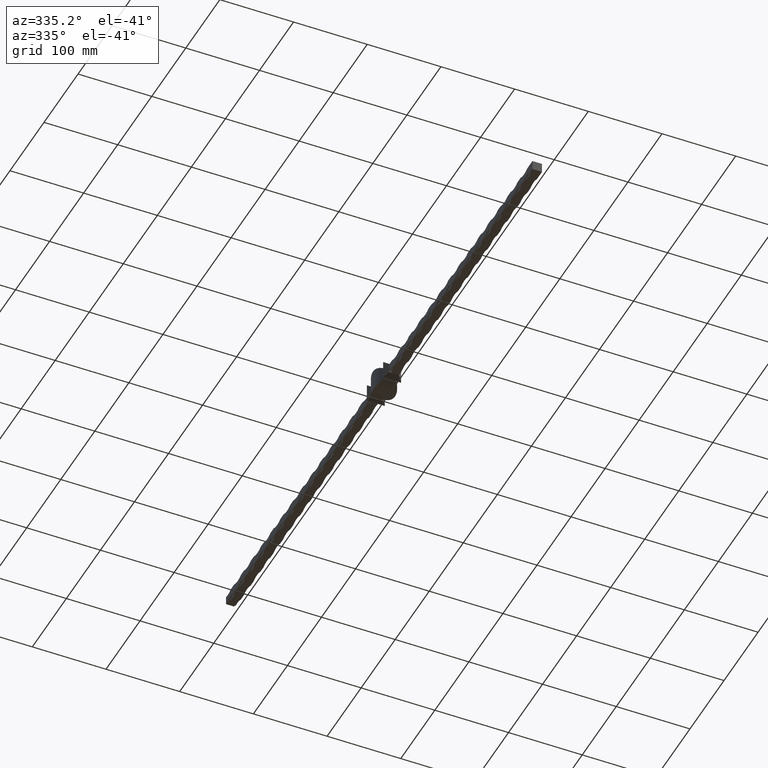
[diagram: clean part render]
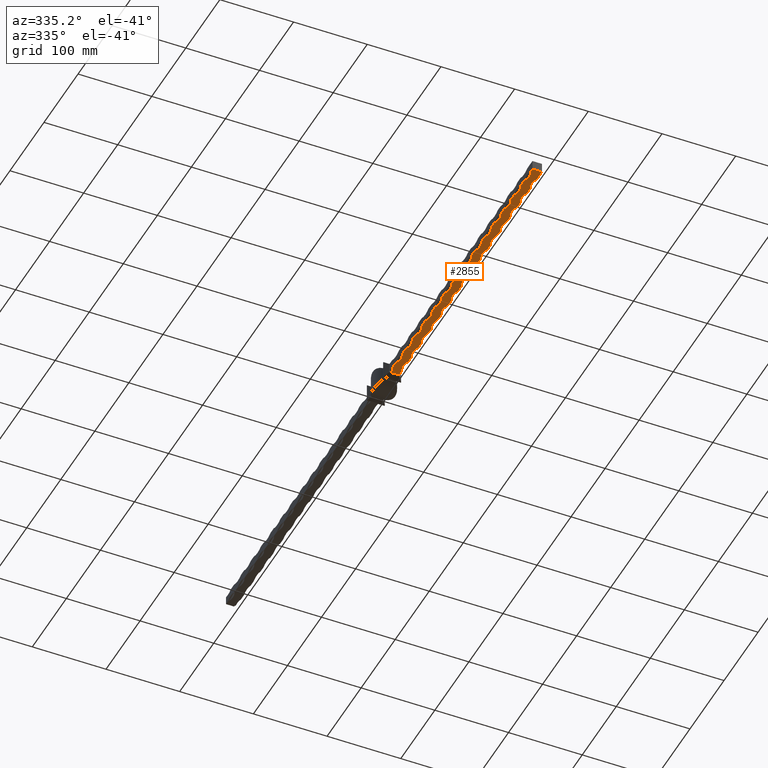
[diagram: same view with one face highlighted and labeled with its STEP entity id]
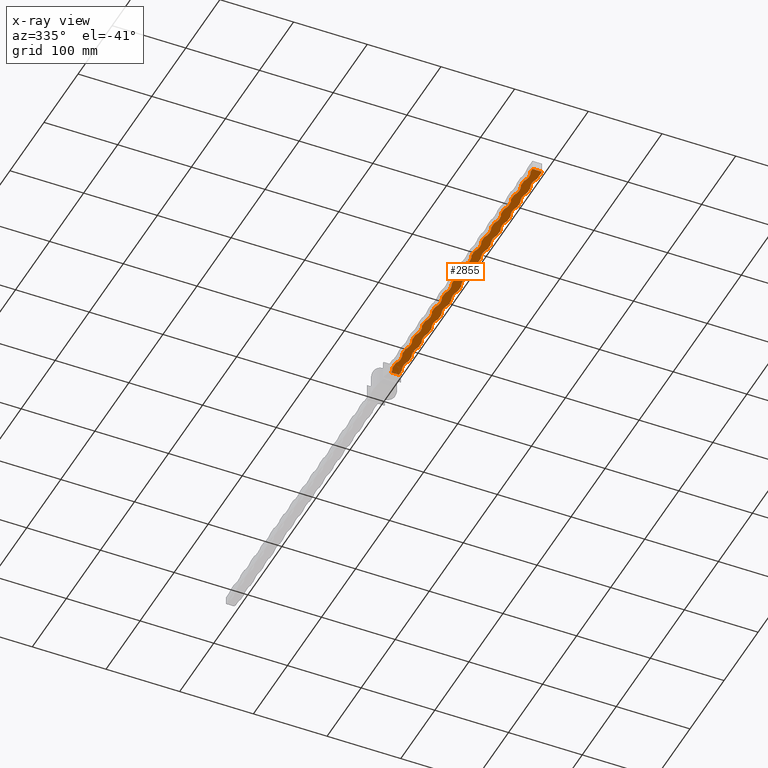
[diagram: x-ray of the same camera — body ghosted, the highlighted face saturated]
A machine part, auxiliary view. The second image highlights one B-rep face of the part: STEP entity #2855.
The next image is the same camera in x-ray: the body ghosted, the highlighted face saturated — about 0% of this face is hidden behind the body in this view.
In plain terms, the highlighted planar face has unit normal (0, 0, 1).
Its self-contained STEP definition (entity closure, byte-faithful):
#15 = VECTOR ( 'NONE', #12182, 1000.000000000000000 ) ;
#58 = VECTOR ( 'NONE', #1897, 1000.000000000000000 ) ;
#94 = CARTESIAN_POINT ( 'NONE',  ( -6.500000000000000888, 450.0000000000000000, -6.499999999999999112 ) ) ;
#138 = CIRCLE ( 'NONE', #9625, 21.25000000000000000 ) ;
#164 = ORIENTED_EDGE ( 'NONE', *, *, #14419, .F. ) ;
#247 = CARTESIAN_POINT ( 'NONE',  ( -6.500000000000002665, -77.00000000000001421, -6.499999999999999112 ) ) ;
#364 = EDGE_CURVE ( 'NONE', #13656, #7207, #5397, .T. ) ;
#420 = ORIENTED_EDGE ( 'NONE', *, *, #15467, .F. ) ;
#426 = CIRCLE ( 'NONE', #5309, 21.24999999999998579 ) ;
#428 = VECTOR ( 'NONE', #9554, 1000.000000000000000 ) ;
#448 = DIRECTION ( 'NONE',  ( -0.000000000000000000, -1.000000000000000000, -0.000000000000000000 ) ) ;
#489 = VERTEX_POINT ( 'NONE', #2640 ) ;
#506 = VERTEX_POINT ( 'NONE', #10933 ) ;
#577 = EDGE_CURVE ( 'NONE', #3587, #14415, #8593, .T. ) ;
#616 = ORIENTED_EDGE ( 'NONE', *, *, #10676, .F. ) ;
#638 = DIRECTION ( 'NONE',  ( -0.000000000000000000, -1.000000000000000000, -0.000000000000000000 ) ) ;
#652 = CARTESIAN_POINT ( 'NONE',  ( 6.499999999999997335, 450.0000000000000000, -6.499999999999999112 ) ) ;
#665 = CARTESIAN_POINT ( 'NONE',  ( 25.24999999999996447, -106.0000000000000426, -6.500000000000014211 ) ) ;
#680 = ORIENTED_EDGE ( 'NONE', *, *, #14022, .T. ) ;
#720 = DIRECTION ( 'NONE',  ( -0.000000000000000000, -1.000000000000000000, -0.000000000000000000 ) ) ;
#721 = AXIS2_PLACEMENT_3D ( 'NONE', #14729, #3687, #8516 ) ;
#723 = CARTESIAN_POINT ( 'NONE',  ( -25.25000000000000355, -145.0000000000000284, -6.499999999999968914 ) ) ;
#737 = CARTESIAN_POINT ( 'NONE',  ( -25.25000000000000355, -232.0000000000000000, -6.499999999999968914 ) ) ;
#760 = LINE ( 'NONE', #14836, #3222 ) ;
#814 = EDGE_CURVE ( 'NONE', #13211, #15542, #426, .T. ) ;
#843 = ORIENTED_EDGE ( 'NONE', *, *, #11688, .T. ) ;
#882 = VECTOR ( 'NONE', #7130, 1000.000000000000000 ) ;
#922 = VECTOR ( 'NONE', #6363, 1000.000000000000000 ) ;
#1012 = CARTESIAN_POINT ( 'NONE',  ( -6.500000000000002665, -425.0000000000000000, -6.499999999999999112 ) ) ;
#1059 = VERTEX_POINT ( 'NONE', #5813 ) ;
#1137 = CARTESIAN_POINT ( 'NONE',  ( -25.25000000000000355, -261.0000000000000000, -6.499999999999968914 ) ) ;
#1189 = VERTEX_POINT ( 'NONE', #3457 ) ;
#1196 = DIRECTION ( 'NONE',  ( 1.000000000000000000, 0.000000000000000000, 0.000000000000000000 ) ) ;
#1206 = DIRECTION ( 'NONE',  ( 1.000000000000000000, 0.000000000000000000, -0.000000000000000000 ) ) ;
#1208 = VERTEX_POINT ( 'NONE', #6073 ) ;
#1273 = CARTESIAN_POINT ( 'NONE',  ( -6.500000000000000888, 450.0000000000000000, -6.499999999999999112 ) ) ;
#1312 = LINE ( 'NONE', #8894, #922 ) ;
#1358 = CARTESIAN_POINT ( 'NONE',  ( 6.499999999999999112, -348.0000000000000000, -6.500000000000014211 ) ) ;
#1461 = VERTEX_POINT ( 'NONE', #1012 ) ;
#1464 = EDGE_CURVE ( 'NONE', #13270, #9117, #5375, .T. ) ;
#1473 = CARTESIAN_POINT ( 'NONE',  ( -6.500000000000002665, -280.0000000000000000, -6.499999999999999112 ) ) ;
#1476 = LINE ( 'NONE', #8076, #14385 ) ;
#1493 = EDGE_CURVE ( 'NONE', #8316, #3096, #7248, .T. ) ;
#1505 = VECTOR ( 'NONE', #10665, 1000.000000000000000 ) ;
#1561 = CIRCLE ( 'NONE', #6139, 21.24999999999998224 ) ;
#1562 = VERTEX_POINT ( 'NONE', #15690 ) ;
#1581 = ORIENTED_EDGE ( 'NONE', *, *, #13072, .F. ) ;
#1598 = ORIENTED_EDGE ( 'NONE', *, *, #15111, .T. ) ;
#1643 = DIRECTION ( 'NONE',  ( 1.000000000000000000, 0.000000000000000000, -0.000000000000000000 ) ) ;
#1645 = DIRECTION ( 'NONE',  ( 1.000000000000000000, 0.000000000000000000, 0.000000000000000000 ) ) ;
#1650 = VECTOR ( 'NONE', #1206, 1000.000000000000000 ) ;
#1662 = DIRECTION ( 'NONE',  ( -0.000000000000000000, -0.000000000000000000, -1.000000000000000000 ) ) ;
#1670 = EDGE_CURVE ( 'NONE', #1208, #13361, #3816, .T. ) ;
#1671 = DIRECTION ( 'NONE',  ( 0.000000000000000000, 0.000000000000000000, 1.000000000000000000 ) ) ;
#1712 = CARTESIAN_POINT ( 'NONE',  ( -25.25000000000000355, -116.0000000000000000, -6.499999999999968914 ) ) ;
#1757 = ORIENTED_EDGE ( 'NONE', *, *, #4280, .T. ) ;
#1762 = VERTEX_POINT ( 'NONE', #1879 ) ;
#1779 = EDGE_CURVE ( 'NONE', #3202, #11951, #12765, .T. ) ;
#1865 = CARTESIAN_POINT ( 'NONE',  ( 25.24999999999996803, -77.00000000000004263, -6.500000000000014211 ) ) ;
#1873 = CARTESIAN_POINT ( 'NONE',  ( -6.500000000000002665, -396.0000000000000000, -6.499999999999999112 ) ) ;
#1874 = AXIS2_PLACEMENT_3D ( 'NONE', #723, #6797, #10350 ) ;
#1879 = CARTESIAN_POINT ( 'NONE',  ( -6.500000000000002665, -39.00000000000004974, -6.499999999999999112 ) ) ;
#1897 = DIRECTION ( 'NONE',  ( -0.000000000000000000, -1.000000000000000000, -0.000000000000000000 ) ) ;
#1899 = DIRECTION ( 'NONE',  ( 1.000000000000000000, 1.959217102279689729E-15, 0.000000000000000000 ) ) ;
#1996 = ORIENTED_EDGE ( 'NONE', *, *, #14130, .F. ) ;
#2023 = VERTEX_POINT ( 'NONE', #4919 ) ;
#2072 = CARTESIAN_POINT ( 'NONE',  ( 6.499999999999997335, 450.0000000000000000, -6.499999999999999112 ) ) ;
#2199 = ORIENTED_EDGE ( 'NONE', *, *, #4563, .F. ) ;
#2241 = DIRECTION ( 'NONE',  ( 1.000000000000000000, 0.000000000000000000, 0.000000000000000000 ) ) ;
#2262 = EDGE_CURVE ( 'NONE', #4775, #4347, #8367, .T. ) ;
#2291 = EDGE_CURVE ( 'NONE', #1762, #9842, #6666, .T. ) ;
#2300 = CARTESIAN_POINT ( 'NONE',  ( 6.499999999999999112, -202.9999999999999716, -6.500000000000014211 ) ) ;
#2318 = CARTESIAN_POINT ( 'NONE',  ( -6.500000000000000888, 450.0000000000000000, -6.499999999999999112 ) ) ;
#2319 = ORIENTED_EDGE ( 'NONE', *, *, #4096, .T. ) ;
#2326 = CIRCLE ( 'NONE', #721, 21.24999999999998934 ) ;
#2343 = ORIENTED_EDGE ( 'NONE', *, *, #577, .F. ) ;
#2407 = CARTESIAN_POINT ( 'NONE',  ( -6.500000000000000888, 450.0000000000000000, -6.499999999999999112 ) ) ;
#2439 = LINE ( 'NONE', #8017, #1505 ) ;
#2472 = CARTESIAN_POINT ( 'NONE',  ( 25.24999999999997513, -48.00000000000002842, -6.500000000000014211 ) ) ;
#2495 = EDGE_CURVE ( 'NONE', #8510, #3701, #760, .T. ) ;
#2517 = DIRECTION ( 'NONE',  ( -0.000000000000000000, -0.000000000000000000, -1.000000000000000000 ) ) ;
#2537 = AXIS2_PLACEMENT_3D ( 'NONE', #3977, #10214, #2930 ) ;
#2600 = VERTEX_POINT ( 'NONE', #11673 ) ;
#2608 = VECTOR ( 'NONE', #10574, 1000.000000000000000 ) ;
#2625 = CARTESIAN_POINT ( 'NONE',  ( -6.500000000000000888, -29.99999999999997158, -6.499999999999999112 ) ) ;
#2640 = CARTESIAN_POINT ( 'NONE',  ( -6.500000000000002665, -338.0000000000000000, -6.499999999999999112 ) ) ;
#2646 = AXIS2_PLACEMENT_3D ( 'NONE', #8769, #1662, #6438 ) ;
#2648 = VERTEX_POINT ( 'NONE', #14937 ) ;
#2671 = CARTESIAN_POINT ( 'NONE',  ( 6.499999999999997335, 450.0000000000000000, -6.499999999999999112 ) ) ;
#2673 = EDGE_CURVE ( 'NONE', #3806, #1189, #6856, .T. ) ;
#2723 = EDGE_CURVE ( 'NONE', #3202, #3683, #10851, .T. ) ;
#2735 = CARTESIAN_POINT ( 'NONE',  ( 6.499999999999997335, 450.0000000000000000, -6.499999999999999112 ) ) ;
#2758 = DIRECTION ( 'NONE',  ( 1.000000000000000000, 0.000000000000000000, 0.000000000000000000 ) ) ;
#2799 = DIRECTION ( 'NONE',  ( -0.000000000000000000, -1.000000000000000000, -0.000000000000000000 ) ) ;
#2804 = CARTESIAN_POINT ( 'NONE',  ( 6.499999999999943157, -270.0000000000000000, -6.500000000000000888 ) ) ;
#2848 = CARTESIAN_POINT ( 'NONE',  ( -6.500000000000002665, -97.00000000000005684, -6.499999999999999112 ) ) ;
#2855 = ADVANCED_FACE ( 'NONE', ( #6371 ), #3956, .F. ) ;
#2890 = AXIS2_PLACEMENT_3D ( 'NONE', #665, #9167, #1899 ) ;
#2930 = DIRECTION ( 'NONE',  ( 1.000000000000000000, 0.000000000000000000, 0.000000000000000000 ) ) ;
#2964 = DIRECTION ( 'NONE',  ( -0.000000000000000000, -1.000000000000000000, -0.000000000000000000 ) ) ;
#3012 = ORIENTED_EDGE ( 'NONE', *, *, #7137, .T. ) ;
#3021 = DIRECTION ( 'NONE',  ( 1.000000000000000000, 0.000000000000000000, 0.000000000000000000 ) ) ;
#3059 = CIRCLE ( 'NONE', #4624, 21.24999999999998934 ) ;
#3062 = EDGE_CURVE ( 'NONE', #1762, #1059, #5058, .T. ) ;
#3096 = VERTEX_POINT ( 'NONE', #2804 ) ;
#3155 = DIRECTION ( 'NONE',  ( -0.000000000000000000, -0.000000000000000000, -1.000000000000000000 ) ) ;
#3167 = ORIENTED_EDGE ( 'NONE', *, *, #1493, .T. ) ;
#3171 = CARTESIAN_POINT ( 'NONE',  ( 6.499999999999982236, -67.00000000000000000, -6.500000000000000888 ) ) ;
#3183 = LINE ( 'NONE', #5204, #5861 ) ;
#3196 = DIRECTION ( 'NONE',  ( 1.000000000000000000, 0.000000000000000000, 0.000000000000000000 ) ) ;
#3202 = VERTEX_POINT ( 'NONE', #12633 ) ;
#3222 = VECTOR ( 'NONE', #3955, 1000.000000000000000 ) ;
#3282 = CARTESIAN_POINT ( 'NONE',  ( -25.25000000000000355, -174.0000000000000284, -6.499999999999968914 ) ) ;
#3381 = ORIENTED_EDGE ( 'NONE', *, *, #7655, .T. ) ;
#3397 = AXIS2_PLACEMENT_3D ( 'NONE', #1712, #13853, #3021 ) ;
#3455 = EDGE_CURVE ( 'NONE', #7614, #7993, #6547, .T. ) ;
#3457 = CARTESIAN_POINT ( 'NONE',  ( -6.500000000000002665, -106.0000000000000142, -6.499999999999999112 ) ) ;
#3587 = VERTEX_POINT ( 'NONE', #8230 ) ;
#3600 = CARTESIAN_POINT ( 'NONE',  ( 6.499999999999997335, 450.0000000000000000, -6.499999999999999112 ) ) ;
#3614 = CARTESIAN_POINT ( 'NONE',  ( 25.24999999999995026, -164.0000000000000284, -6.500000000000014211 ) ) ;
#3625 = LINE ( 'NONE', #7441, #15 ) ;
#3658 = LINE ( 'NONE', #11695, #428 ) ;
#3678 = ORIENTED_EDGE ( 'NONE', *, *, #6206, .F. ) ;
#3683 = VERTEX_POINT ( 'NONE', #8430 ) ;
#3687 = DIRECTION ( 'NONE',  ( -0.000000000000000000, -0.000000000000000000, -1.000000000000000000 ) ) ;
#3701 = VERTEX_POINT ( 'NONE', #6112 ) ;
#3725 = VERTEX_POINT ( 'NONE', #247 ) ;
#3737 = VERTEX_POINT ( 'NONE', #12461 ) ;
#3761 = CARTESIAN_POINT ( 'NONE',  ( 6.499999999999920952, -386.0000000000000000, -6.500000000000000888 ) ) ;
#3775 = AXIS2_PLACEMENT_3D ( 'NONE', #12881, #11562, #3196 ) ;
#3780 = CIRCLE ( 'NONE', #9747, 21.25000000000000000 ) ;
#3806 = VERTEX_POINT ( 'NONE', #2848 ) ;
#3816 = LINE ( 'NONE', #10883, #7613 ) ;
#3932 = VECTOR ( 'NONE', #5308, 1000.000000000000000 ) ;
#3938 = ORIENTED_EDGE ( 'NONE', *, *, #13415, .T. ) ;
#3955 = DIRECTION ( 'NONE',  ( -0.000000000000000000, -1.000000000000000000, -0.000000000000000000 ) ) ;
#3956 = PLANE ( 'NONE',  #14643 ) ;
#3977 = CARTESIAN_POINT ( 'NONE',  ( -25.25000000000000355, -406.0000000000000000, -6.499999999999968914 ) ) ;
#4030 = ORIENTED_EDGE ( 'NONE', *, *, #6635, .T. ) ;
#4096 = EDGE_CURVE ( 'NONE', #7218, #14415, #7272, .T. ) ;
#4125 = ORIENTED_EDGE ( 'NONE', *, *, #2262, .F. ) ;
#4164 = VECTOR ( 'NONE', #11586, 1000.000000000000000 ) ;
#4180 = EDGE_CURVE ( 'NONE', #13016, #3725, #12023, .T. ) ;
#4188 = VECTOR ( 'NONE', #6148, 1000.000000000000000 ) ;
#4240 = VERTEX_POINT ( 'NONE', #1358 ) ;
#4250 = CIRCLE ( 'NONE', #2537, 21.25000000000000000 ) ;
#4251 = VERTEX_POINT ( 'NONE', #12336 ) ;
#4280 = EDGE_CURVE ( 'NONE', #4301, #489, #9556, .T. ) ;
#4301 = VERTEX_POINT ( 'NONE', #11130 ) ;
#4308 = CARTESIAN_POINT ( 'NONE',  ( -6.500000000000002665, -48.00000000000000000, -6.499999999999999112 ) ) ;
#4333 = DIRECTION ( 'NONE',  ( 1.000000000000000000, -1.306144734853126026E-15, 0.000000000000000000 ) ) ;
#4347 = VERTEX_POINT ( 'NONE', #11017 ) ;
#4363 = CARTESIAN_POINT ( 'NONE',  ( -25.25000000000000355, -58.00000000000000000, -6.499999999999968914 ) ) ;
#4382 = AXIS2_PLACEMENT_3D ( 'NONE', #6808, #6861, #14170 ) ;
#4428 = VERTEX_POINT ( 'NONE', #11343 ) ;
#4442 = CARTESIAN_POINT ( 'NONE',  ( -6.500000000000002665, -126.0000000000000568, -6.499999999999999112 ) ) ;
#4480 = DIRECTION ( 'NONE',  ( 0.000000000000000000, 0.000000000000000000, 1.000000000000000000 ) ) ;
#4497 = DIRECTION ( 'NONE',  ( -0.000000000000000000, -1.000000000000000000, -0.000000000000000000 ) ) ;
#4529 = CARTESIAN_POINT ( 'NONE',  ( -6.500000000000000888, 450.0000000000000000, -6.499999999999999112 ) ) ;
#4563 = EDGE_CURVE ( 'NONE', #4240, #11951, #7071, .T. ) ;
#4624 = AXIS2_PLACEMENT_3D ( 'NONE', #8427, #7303, #14522 ) ;
#4650 = VECTOR ( 'NONE', #13160, 1000.000000000000000 ) ;
#4663 = CARTESIAN_POINT ( 'NONE',  ( -6.500000000000000888, -450.0000000000000000, -6.499999999999999112 ) ) ;
#4775 = VERTEX_POINT ( 'NONE', #2300 ) ;
#4798 = CARTESIAN_POINT ( 'NONE',  ( 6.499999999999995559, -290.0000000000000000, -6.500000000000014211 ) ) ;
#4806 = EDGE_LOOP ( 'NONE', ( #12885, #1598, #10170, #9875, #9357, #13392, #8174, #1581, #12849, #14613, #6648, #7311, #7545, #4125, #680, #10327, #5523, #616, #3167, #9809, #4923, #9141, #4841, #2199, #3938, #8138, #14822, #164, #11516, #12475, #12523, #6978, #9736, #7351, #10245, #3381, #3678, #14908, #11331, #1757, #5170, #14891, #1996, #3012, #13691, #2319, #2343, #10932, #11324, #12702, #7383, #4030, #420, #843, #11637, #13731, #8830, #13706, #8498, #5561, #8097 ) ) ;
#4841 = ORIENTED_EDGE ( 'NONE', *, *, #1779, .T. ) ;
#4871 = CIRCLE ( 'NONE', #14113, 21.25000000000000000 ) ;
#4889 = CARTESIAN_POINT ( 'NONE',  ( -6.500000000000002665, -271.0000000000000568, -6.499999999999999112 ) ) ;
#4919 = CARTESIAN_POINT ( 'NONE',  ( 6.499999999999999112, -87.00000000000001421, -6.500000000000014211 ) ) ;
#4923 = ORIENTED_EDGE ( 'NONE', *, *, #9256, .T. ) ;
#4931 = AXIS2_PLACEMENT_3D ( 'NONE', #2472, #7299, #13358 ) ;
#4957 = EDGE_CURVE ( 'NONE', #11770, #10377, #5567, .T. ) ;
#4963 = AXIS2_PLACEMENT_3D ( 'NONE', #4363, #5642, #11696 ) ;
#5058 = CIRCLE ( 'NONE', #7529, 21.25000000000000000 ) ;
#5090 = CARTESIAN_POINT ( 'NONE',  ( -6.500000000000002665, -416.0000000000001137, -6.499999999999999112 ) ) ;
#5137 = AXIS2_PLACEMENT_3D ( 'NONE', #10390, #3155, #4333 ) ;
#5170 = ORIENTED_EDGE ( 'NONE', *, *, #12887, .F. ) ;
#5204 = CARTESIAN_POINT ( 'NONE',  ( 6.499999999999997335, 450.0000000000000000, -6.499999999999999112 ) ) ;
#5279 = EDGE_CURVE ( 'NONE', #11970, #7207, #3059, .T. ) ;
#5309 = AXIS2_PLACEMENT_3D ( 'NONE', #11242, #2517, #12393 ) ;
#5308 = DIRECTION ( 'NONE',  ( -0.000000000000000000, -1.000000000000000000, -0.000000000000000000 ) ) ;
#5375 = CIRCLE ( 'NONE', #14735, 21.24999999999998579 ) ;
#5397 = LINE ( 'NONE', #8807, #9558 ) ;
#5424 = AXIS2_PLACEMENT_3D ( 'NONE', #1865, #13911, #12908 ) ;
#5502 = EDGE_CURVE ( 'NONE', #3806, #3725, #5723, .T. ) ;
#5523 = ORIENTED_EDGE ( 'NONE', *, *, #13028, .T. ) ;
#5561 = ORIENTED_EDGE ( 'NONE', *, *, #14004, .T. ) ;
#5567 = LINE ( 'NONE', #7752, #12778 ) ;
#5629 = DIRECTION ( 'NONE',  ( -0.000000000000000000, -1.000000000000000000, -0.000000000000000000 ) ) ;
#5639 = CARTESIAN_POINT ( 'NONE',  ( 6.499999999999965361, -154.0000000000000284, -6.500000000000000888 ) ) ;
#5642 = DIRECTION ( 'NONE',  ( 0.000000000000000000, 0.000000000000000000, 1.000000000000000000 ) ) ;
#5663 = VERTEX_POINT ( 'NONE', #15308 ) ;
#5664 = EDGE_CURVE ( 'NONE', #7194, #3701, #9508, .T. ) ;
#5667 = CIRCLE ( 'NONE', #4963, 21.25000000000000000 ) ;
#5715 = CARTESIAN_POINT ( 'NONE',  ( 6.499999999999931610, -328.0000000000000000, -6.500000000000000888 ) ) ;
#5723 = CIRCLE ( 'NONE', #8167, 21.25000000000000000 ) ;
#5813 = CARTESIAN_POINT ( 'NONE',  ( -4.023542452872643338, -29.99999999999997158, -6.499999999999968914 ) ) ;
#5825 = AXIS2_PLACEMENT_3D ( 'NONE', #1137, #15713, #1196 ) ;
#5850 = LINE ( 'NONE', #10773, #2608 ) ;
#5861 = VECTOR ( 'NONE', #448, 1000.000000000000000 ) ;
#5888 = EDGE_CURVE ( 'NONE', #11770, #13361, #7413, .T. ) ;
#5904 = LINE ( 'NONE', #13284, #14438 ) ;
#5938 = EDGE_CURVE ( 'NONE', #12590, #1562, #9708, .T. ) ;
#5946 = AXIS2_PLACEMENT_3D ( 'NONE', #3614, #15652, #12120 ) ;
#6027 = DIRECTION ( 'NONE',  ( -0.000000000000000000, -1.000000000000000000, -0.000000000000000000 ) ) ;
#6057 = DIRECTION ( 'NONE',  ( 0.000000000000000000, 0.000000000000000000, 1.000000000000000000 ) ) ;
#6062 = EDGE_CURVE ( 'NONE', #11514, #12827, #7394, .T. ) ;
#6073 = CARTESIAN_POINT ( 'NONE',  ( 6.499999999999997335, -29.99999999999997158, -6.499999999999999112 ) ) ;
#6097 = CARTESIAN_POINT ( 'NONE',  ( 6.499999999999914735, -415.0000000000000000, -6.500000000000000888 ) ) ;
#6110 = DIRECTION ( 'NONE',  ( -0.000000000000000000, -1.000000000000000000, -0.000000000000000000 ) ) ;
#6112 = CARTESIAN_POINT ( 'NONE',  ( 6.499999999999970690, -125.0000000000000284, -6.500000000000000888 ) ) ;
#6117 = CARTESIAN_POINT ( 'NONE',  ( -6.500000000000002665, -155.0000000000000853, -6.499999999999999112 ) ) ;
#6123 = DIRECTION ( 'NONE',  ( -0.000000000000000000, -1.000000000000000000, -0.000000000000000000 ) ) ;
#6139 = AXIS2_PLACEMENT_3D ( 'NONE', #11303, #8895, #11353 ) ;
#6148 = DIRECTION ( 'NONE',  ( -0.000000000000000000, -1.000000000000000000, -0.000000000000000000 ) ) ;
#6206 = EDGE_CURVE ( 'NONE', #4428, #7861, #5904, .T. ) ;
#6254 = CARTESIAN_POINT ( 'NONE',  ( 6.499999999999999112, -231.9999999999999147, -6.500000000000014211 ) ) ;
#6337 = CARTESIAN_POINT ( 'NONE',  ( -25.25000000000000355, -203.0000000000000000, -6.499999999999968914 ) ) ;
#6358 = LINE ( 'NONE', #2671, #11670 ) ;
#6363 = DIRECTION ( 'NONE',  ( -0.000000000000000000, -1.000000000000000000, -0.000000000000000000 ) ) ;
#6371 = FACE_OUTER_BOUND ( 'NONE', #4806, .T. ) ;
#6375 = DIRECTION ( 'NONE',  ( 1.000000000000000000, 0.000000000000000000, 0.000000000000000000 ) ) ;
#6438 = DIRECTION ( 'NONE',  ( 1.000000000000000000, -2.612289469706252841E-15, 0.000000000000000000 ) ) ;
#6547 = LINE ( 'NONE', #8128, #4650 ) ;
#6576 = CARTESIAN_POINT ( 'NONE',  ( 6.499999999999997335, 450.0000000000000000, -6.499999999999999112 ) ) ;
#6629 = CARTESIAN_POINT ( 'NONE',  ( -6.500000000000002665, -251.0000000000000000, -6.499999999999999112 ) ) ;
#6635 = EDGE_CURVE ( 'NONE', #3737, #2600, #4871, .T. ) ;
#6648 = ORIENTED_EDGE ( 'NONE', *, *, #12682, .T. ) ;
#6666 = LINE ( 'NONE', #4529, #14059 ) ;
#6700 = VECTOR ( 'NONE', #7628, 1000.000000000000000 ) ;
#6797 = DIRECTION ( 'NONE',  ( 0.000000000000000000, 0.000000000000000000, 1.000000000000000000 ) ) ;
#6808 = CARTESIAN_POINT ( 'NONE',  ( 25.24999999999994671, -193.0000000000000284, -6.500000000000014211 ) ) ;
#6826 = CIRCLE ( 'NONE', #2890, 21.24999999999998224 ) ;
#6856 = LINE ( 'NONE', #7948, #58 ) ;
#6861 = DIRECTION ( 'NONE',  ( -0.000000000000000000, -0.000000000000000000, -1.000000000000000000 ) ) ;
#6978 = ORIENTED_EDGE ( 'NONE', *, *, #12037, .T. ) ;
#7011 = EDGE_CURVE ( 'NONE', #11970, #4251, #15654, .T. ) ;
#7071 = CIRCLE ( 'NONE', #7747, 21.24999999999998579 ) ;
#7130 = DIRECTION ( 'NONE',  ( -0.000000000000000000, -1.000000000000000000, -0.000000000000000000 ) ) ;
#7137 = EDGE_CURVE ( 'NONE', #5663, #15213, #3780, .T. ) ;
#7194 = VERTEX_POINT ( 'NONE', #13561 ) ;
#7207 = VERTEX_POINT ( 'NONE', #6097 ) ;
#7218 = VERTEX_POINT ( 'NONE', #4889 ) ;
#7248 = LINE ( 'NONE', #3600, #14842 ) ;
#7272 = CIRCLE ( 'NONE', #5825, 21.25000000000000000 ) ;
#7299 = DIRECTION ( 'NONE',  ( -0.000000000000000000, -0.000000000000000000, -1.000000000000000000 ) ) ;
#7303 = DIRECTION ( 'NONE',  ( -0.000000000000000000, -0.000000000000000000, -1.000000000000000000 ) ) ;
#7311 = ORIENTED_EDGE ( 'NONE', *, *, #13695, .F. ) ;
#7351 = ORIENTED_EDGE ( 'NONE', *, *, #8840, .T. ) ;
#7383 = ORIENTED_EDGE ( 'NONE', *, *, #12781, .F. ) ;
#7386 = LINE ( 'NONE', #2072, #4164 ) ;
#7394 = CIRCLE ( 'NONE', #3775, 21.25000000000000000 ) ;
#7413 = CIRCLE ( 'NONE', #4931, 21.24999999999998579 ) ;
#7441 = CARTESIAN_POINT ( 'NONE',  ( -6.500000000000000888, 450.0000000000000000, -6.499999999999999112 ) ) ;
#7452 = DIRECTION ( 'NONE',  ( 0.000000000000000000, 0.000000000000000000, 1.000000000000000000 ) ) ;
#7529 = AXIS2_PLACEMENT_3D ( 'NONE', #9503, #6057, #2758 ) ;
#7535 = DIRECTION ( 'NONE',  ( 1.000000000000000000, 0.000000000000000000, 0.000000000000000000 ) ) ;
#7545 = ORIENTED_EDGE ( 'NONE', *, *, #13305, .T. ) ;
#7613 = VECTOR ( 'NONE', #14641, 1000.000000000000000 ) ;
#7614 = VERTEX_POINT ( 'NONE', #8454 ) ;
#7622 = DIRECTION ( 'NONE',  ( 0.000000000000000000, 0.000000000000000000, 1.000000000000000000 ) ) ;
#7628 = DIRECTION ( 'NONE',  ( -0.000000000000000000, -1.000000000000000000, -0.000000000000000000 ) ) ;
#7639 = VECTOR ( 'NONE', #13554, 1000.000000000000000 ) ;
#7655 = EDGE_CURVE ( 'NONE', #9235, #7861, #4250, .T. ) ;
#7676 = VERTEX_POINT ( 'NONE', #11440 ) ;
#7747 = AXIS2_PLACEMENT_3D ( 'NONE', #11598, #11901, #8088 ) ;
#7752 = CARTESIAN_POINT ( 'NONE',  ( 6.499999999999997335, 450.0000000000000000, -6.499999999999999112 ) ) ;
#7778 = CARTESIAN_POINT ( 'NONE',  ( 6.499999999999999112, -376.9999999999998863, -6.500000000000014211 ) ) ;
#7861 = VERTEX_POINT ( 'NONE', #1873 ) ;
#7900 = DIRECTION ( 'NONE',  ( 0.000000000000000000, 0.000000000000000000, 1.000000000000000000 ) ) ;
#7912 = VERTEX_POINT ( 'NONE', #8320 ) ;
#7948 = CARTESIAN_POINT ( 'NONE',  ( -6.500000000000000888, 450.0000000000000000, -6.499999999999999112 ) ) ;
#7966 = LINE ( 'NONE', #10136, #15715 ) ;
#7993 = VERTEX_POINT ( 'NONE', #11705 ) ;
#8017 = CARTESIAN_POINT ( 'NONE',  ( 6.499999999999997335, 450.0000000000000000, -6.499999999999999112 ) ) ;
#8053 = CARTESIAN_POINT ( 'NONE',  ( 6.499999999999926281, -357.0000000000000000, -6.500000000000000888 ) ) ;
#8076 = CARTESIAN_POINT ( 'NONE',  ( 6.499999999999997335, 450.0000000000000000, -6.499999999999999112 ) ) ;
#8088 = DIRECTION ( 'NONE',  ( 1.000000000000000000, -2.612289469706252447E-15, 0.000000000000000000 ) ) ;
#8096 = CARTESIAN_POINT ( 'NONE',  ( 6.499999999999997335, -405.9999999999999432, -6.500000000000014211 ) ) ;
#8097 = ORIENTED_EDGE ( 'NONE', *, *, #2291, .F. ) ;
#8128 = CARTESIAN_POINT ( 'NONE',  ( -6.500000000000000888, 450.0000000000000000, -6.499999999999999112 ) ) ;
#8138 = ORIENTED_EDGE ( 'NONE', *, *, #1464, .F. ) ;
#8149 = LINE ( 'NONE', #6576, #9667 ) ;
#8167 = AXIS2_PLACEMENT_3D ( 'NONE', #12718, #7900, #13885 ) ;
#8174 = ORIENTED_EDGE ( 'NONE', *, *, #12638, .T. ) ;
#8230 = CARTESIAN_POINT ( 'NONE',  ( -6.500000000000002665, -242.0000000000000568, -6.499999999999999112 ) ) ;
#8265 = AXIS2_PLACEMENT_3D ( 'NONE', #8566, #7452, #8676 ) ;
#8316 = VERTEX_POINT ( 'NONE', #9879 ) ;
#8320 = CARTESIAN_POINT ( 'NONE',  ( -6.500000000000002665, -193.0000000000000000, -6.499999999999999112 ) ) ;
#8367 = CIRCLE ( 'NONE', #4382, 21.24999999999998579 ) ;
#8408 = DIRECTION ( 'NONE',  ( -1.000000000000000000, -0.000000000000000000, -0.000000000000000000 ) ) ;
#8411 = CIRCLE ( 'NONE', #5424, 21.24999999999998579 ) ;
#8427 = CARTESIAN_POINT ( 'NONE',  ( 25.24999999999990052, -425.0000000000000568, -6.500000000000014211 ) ) ;
#8430 = CARTESIAN_POINT ( 'NONE',  ( 6.499999999999936939, -299.0000000000000000, -6.500000000000000888 ) ) ;
#8454 = CARTESIAN_POINT ( 'NONE',  ( -6.500000000000002665, -213.0000000000000853, -6.499999999999999112 ) ) ;
#8498 = ORIENTED_EDGE ( 'NONE', *, *, #4180, .F. ) ;
#8510 = VERTEX_POINT ( 'NONE', #14012 ) ;
#8511 = VECTOR ( 'NONE', #13058, 1000.000000000000000 ) ;
#8516 = DIRECTION ( 'NONE',  ( 1.000000000000000000, -5.224578939412504105E-15, 0.000000000000000000 ) ) ;
#8557 = VERTEX_POINT ( 'NONE', #5639 ) ;
#8566 = CARTESIAN_POINT ( 'NONE',  ( -25.25000000000000355, -348.0000000000000568, -6.499999999999968914 ) ) ;
#8593 = LINE ( 'NONE', #10193, #6700 ) ;
#8604 = CARTESIAN_POINT ( 'NONE',  ( 6.499999999999995559, -173.9999999999999716, -6.500000000000014211 ) ) ;
#8676 = DIRECTION ( 'NONE',  ( 1.000000000000000000, 0.000000000000000000, 0.000000000000000000 ) ) ;
#8769 = CARTESIAN_POINT ( 'NONE',  ( 25.24999999999992184, -309.0000000000000568, -6.500000000000014211 ) ) ;
#8807 = CARTESIAN_POINT ( 'NONE',  ( 6.499999999999997335, 450.0000000000000000, -6.499999999999999112 ) ) ;
#8830 = ORIENTED_EDGE ( 'NONE', *, *, #2673, .F. ) ;
#8840 = EDGE_CURVE ( 'NONE', #12590, #1461, #13184, .T. ) ;
#8894 = CARTESIAN_POINT ( 'NONE',  ( 6.499999999999997335, 450.0000000000000000, -6.499999999999999112 ) ) ;
#8895 = DIRECTION ( 'NONE',  ( -0.000000000000000000, -0.000000000000000000, -1.000000000000000000 ) ) ;
#8907 = DIRECTION ( 'NONE',  ( 0.000000000000000000, 0.000000000000000000, 1.000000000000000000 ) ) ;
#8935 = VECTOR ( 'NONE', #8408, 1000.000000000000000 ) ;
#8958 = CARTESIAN_POINT ( 'NONE',  ( -6.500000000000000888, 450.0000000000000000, -6.499999999999999112 ) ) ;
#9096 = AXIS2_PLACEMENT_3D ( 'NONE', #15051, #12620, #1645 ) ;
#9117 = VERTEX_POINT ( 'NONE', #8053 ) ;
#9141 = ORIENTED_EDGE ( 'NONE', *, *, #2723, .F. ) ;
#9167 = DIRECTION ( 'NONE',  ( -0.000000000000000000, -0.000000000000000000, -1.000000000000000000 ) ) ;
#9191 = DIRECTION ( 'NONE',  ( 1.000000000000000000, 0.000000000000000000, 0.000000000000000000 ) ) ;
#9224 = VECTOR ( 'NONE', #5629, 1000.000000000000000 ) ;
#9235 = VERTEX_POINT ( 'NONE', #5090 ) ;
#9256 = EDGE_CURVE ( 'NONE', #10055, #3683, #6358, .T. ) ;
#9291 = DIRECTION ( 'NONE',  ( -0.000000000000000000, -1.000000000000000000, -0.000000000000000000 ) ) ;
#9357 = ORIENTED_EDGE ( 'NONE', *, *, #4957, .T. ) ;
#9404 = DIRECTION ( 'NONE',  ( 1.000000000000000000, 0.000000000000000000, 0.000000000000000000 ) ) ;
#9471 = LINE ( 'NONE', #2735, #3932 ) ;
#9503 = CARTESIAN_POINT ( 'NONE',  ( -25.25000000000000355, -29.00000000000000000, -6.499999999999968914 ) ) ;
#9508 = CIRCLE ( 'NONE', #5137, 21.24999999999998934 ) ;
#9554 = DIRECTION ( 'NONE',  ( -0.000000000000000000, -1.000000000000000000, -0.000000000000000000 ) ) ;
#9556 = CIRCLE ( 'NONE', #8265, 21.25000000000000000 ) ;
#9558 = VECTOR ( 'NONE', #13577, 1000.000000000000000 ) ;
#9596 = DIRECTION ( 'NONE',  ( 1.000000000000000000, 0.000000000000000000, 0.000000000000000000 ) ) ;
#9625 = AXIS2_PLACEMENT_3D ( 'NONE', #737, #4480, #9191 ) ;
#9667 = VECTOR ( 'NONE', #720, 1000.000000000000000 ) ;
#9708 = LINE ( 'NONE', #13408, #4188 ) ;
#9736 = ORIENTED_EDGE ( 'NONE', *, *, #5938, .F. ) ;
#9747 = AXIS2_PLACEMENT_3D ( 'NONE', #11974, #15510, #9596 ) ;
#9772 = EDGE_CURVE ( 'NONE', #2023, #10377, #8411, .T. ) ;
#9809 = ORIENTED_EDGE ( 'NONE', *, *, #10469, .F. ) ;
#9842 = VERTEX_POINT ( 'NONE', #4308 ) ;
#9875 = ORIENTED_EDGE ( 'NONE', *, *, #5888, .F. ) ;
#9879 = CARTESIAN_POINT ( 'NONE',  ( 6.499999999999997335, -260.9999999999999432, -6.500000000000014211 ) ) ;
#9926 = CARTESIAN_POINT ( 'NONE',  ( -6.500000000000002665, -329.0000000000000568, -6.499999999999999112 ) ) ;
#9949 = EDGE_CURVE ( 'NONE', #7218, #15213, #3658, .T. ) ;
#10049 = LINE ( 'NONE', #94, #11583 ) ;
#10055 = VERTEX_POINT ( 'NONE', #4798 ) ;
#10136 = CARTESIAN_POINT ( 'NONE',  ( -6.500000000000000888, 450.0000000000000000, -6.499999999999999112 ) ) ;
#10164 = DIRECTION ( 'NONE',  ( 1.000000000000000000, 0.000000000000000000, 0.000000000000000000 ) ) ;
#10170 = ORIENTED_EDGE ( 'NONE', *, *, #1670, .T. ) ;
#10193 = CARTESIAN_POINT ( 'NONE',  ( -6.500000000000000888, 450.0000000000000000, -6.499999999999999112 ) ) ;
#10214 = DIRECTION ( 'NONE',  ( 0.000000000000000000, 0.000000000000000000, 1.000000000000000000 ) ) ;
#10245 = ORIENTED_EDGE ( 'NONE', *, *, #12972, .F. ) ;
#10327 = ORIENTED_EDGE ( 'NONE', *, *, #814, .F. ) ;
#10350 = DIRECTION ( 'NONE',  ( 1.000000000000000000, 0.000000000000000000, 0.000000000000000000 ) ) ;
#10377 = VERTEX_POINT ( 'NONE', #3171 ) ;
#10390 = CARTESIAN_POINT ( 'NONE',  ( 25.24999999999995737, -135.0000000000000284, -6.500000000000014211 ) ) ;
#10429 = VECTOR ( 'NONE', #6110, 1000.000000000000000 ) ;
#10469 = EDGE_CURVE ( 'NONE', #10055, #3096, #2326, .T. ) ;
#10574 = DIRECTION ( 'NONE',  ( -0.000000000000000000, -1.000000000000000000, -0.000000000000000000 ) ) ;
#10665 = DIRECTION ( 'NONE',  ( -0.000000000000000000, -1.000000000000000000, -0.000000000000000000 ) ) ;
#10673 = DIRECTION ( 'NONE',  ( 0.000000000000000000, 0.000000000000000000, 1.000000000000000000 ) ) ;
#10676 = EDGE_CURVE ( 'NONE', #8316, #506, #1561, .T. ) ;
#10773 = CARTESIAN_POINT ( 'NONE',  ( -6.500000000000000888, 450.0000000000000000, -6.499999999999999112 ) ) ;
#10826 = DIRECTION ( 'NONE',  ( -0.000000000000000000, -0.000000000000000000, -1.000000000000000000 ) ) ;
#10846 = AXIS2_PLACEMENT_3D ( 'NONE', #13757, #1671, #10164 ) ;
#10851 = CIRCLE ( 'NONE', #2646, 21.24999999999998224 ) ;
#10883 = CARTESIAN_POINT ( 'NONE',  ( 6.499999999999997335, 450.0000000000000000, -6.499999999999999112 ) ) ;
#10925 = CARTESIAN_POINT ( 'NONE',  ( -6.500000000000002665, -309.0000000000000000, -6.499999999999999112 ) ) ;
#10932 = ORIENTED_EDGE ( 'NONE', *, *, #13978, .T. ) ;
#10933 = CARTESIAN_POINT ( 'NONE',  ( 6.499999999999948486, -241.0000000000000284, -6.500000000000000888 ) ) ;
#10963 = DIRECTION ( 'NONE',  ( -0.000000000000000000, -1.000000000000000000, -0.000000000000000000 ) ) ;
#11015 = EDGE_CURVE ( 'NONE', #13692, #11151, #3625, .T. ) ;
#11017 = CARTESIAN_POINT ( 'NONE',  ( 6.499999999999960032, -183.0000000000000284, -6.500000000000000888 ) ) ;
#11031 = CARTESIAN_POINT ( 'NONE',  ( 6.499999999999999112, -58.00000000000000000, -6.500000000000014211 ) ) ;
#11130 = CARTESIAN_POINT ( 'NONE',  ( -6.500000000000002665, -358.0000000000001137, -6.499999999999999112 ) ) ;
#11151 = VERTEX_POINT ( 'NONE', #11335 ) ;
#11242 = CARTESIAN_POINT ( 'NONE',  ( 25.24999999999993960, -222.0000000000000284, -6.500000000000014211 ) ) ;
#11303 = CARTESIAN_POINT ( 'NONE',  ( 25.24999999999993605, -251.0000000000000568, -6.500000000000014211 ) ) ;
#11309 = CARTESIAN_POINT ( 'NONE',  ( -25.25000000000000355, -435.0000000000000000, -6.499999999999968914 ) ) ;
#11324 = ORIENTED_EDGE ( 'NONE', *, *, #3455, .F. ) ;
#11331 = ORIENTED_EDGE ( 'NONE', *, *, #12873, .F. ) ;
#11335 = CARTESIAN_POINT ( 'NONE',  ( -6.500000000000002665, -135.0000000000000000, -6.499999999999999112 ) ) ;
#11343 = CARTESIAN_POINT ( 'NONE',  ( -6.500000000000002665, -387.0000000000000568, -6.499999999999999112 ) ) ;
#11353 = DIRECTION ( 'NONE',  ( 1.000000000000000000, 0.000000000000000000, 0.000000000000000000 ) ) ;
#11388 = LINE ( 'NONE', #1273, #10429 ) ;
#11440 = CARTESIAN_POINT ( 'NONE',  ( 6.499999999999976019, -96.00000000000000000, -6.500000000000000888 ) ) ;
#11514 = VERTEX_POINT ( 'NONE', #9926 ) ;
#11516 = ORIENTED_EDGE ( 'NONE', *, *, #364, .T. ) ;
#11562 = DIRECTION ( 'NONE',  ( 0.000000000000000000, 0.000000000000000000, 1.000000000000000000 ) ) ;
#11583 = VECTOR ( 'NONE', #12406, 1000.000000000000000 ) ;
#11586 = DIRECTION ( 'NONE',  ( -0.000000000000000000, -1.000000000000000000, -0.000000000000000000 ) ) ;
#11598 = CARTESIAN_POINT ( 'NONE',  ( 25.24999999999991829, -338.0000000000000568, -6.500000000000014211 ) ) ;
#11637 = ORIENTED_EDGE ( 'NONE', *, *, #11015, .F. ) ;
#11670 = VECTOR ( 'NONE', #10963, 1000.000000000000000 ) ;
#11673 = CARTESIAN_POINT ( 'NONE',  ( -6.500000000000002665, -164.0000000000000000, -6.499999999999999112 ) ) ;
#11688 = EDGE_CURVE ( 'NONE', #14208, #11151, #12749, .T. ) ;
#11695 = CARTESIAN_POINT ( 'NONE',  ( -6.500000000000000888, 450.0000000000000000, -6.499999999999999112 ) ) ;
#11696 = DIRECTION ( 'NONE',  ( 1.000000000000000000, 0.000000000000000000, 0.000000000000000000 ) ) ;
#11705 = CARTESIAN_POINT ( 'NONE',  ( -6.500000000000002665, -222.0000000000000000, -6.499999999999999112 ) ) ;
#11770 = VERTEX_POINT ( 'NONE', #11031 ) ;
#11849 = CARTESIAN_POINT ( 'NONE',  ( 25.24999999999991118, -367.0000000000000568, -6.500000000000014211 ) ) ;
#11901 = DIRECTION ( 'NONE',  ( -0.000000000000000000, -0.000000000000000000, -1.000000000000000000 ) ) ;
#11915 = CIRCLE ( 'NONE', #5946, 21.24999999999998224 ) ;
#11948 = LINE ( 'NONE', #15472, #8511 ) ;
#11951 = VERTEX_POINT ( 'NONE', #5715 ) ;
#11970 = VERTEX_POINT ( 'NONE', #15398 ) ;
#11974 = CARTESIAN_POINT ( 'NONE',  ( -25.25000000000000355, -290.0000000000000568, -6.499999999999968914 ) ) ;
#11991 = VECTOR ( 'NONE', #4497, 1000.000000000000000 ) ;
#12023 = LINE ( 'NONE', #2318, #7639 ) ;
#12037 = EDGE_CURVE ( 'NONE', #4251, #1562, #15370, .T. ) ;
#12079 = LINE ( 'NONE', #2407, #882 ) ;
#12120 = DIRECTION ( 'NONE',  ( 1.000000000000000000, 0.000000000000000000, 0.000000000000000000 ) ) ;
#12182 = DIRECTION ( 'NONE',  ( -0.000000000000000000, -1.000000000000000000, -0.000000000000000000 ) ) ;
#12336 = CARTESIAN_POINT ( 'NONE',  ( 6.499999999999997335, -450.0000000000000000, -6.499999999999999112 ) ) ;
#12393 = DIRECTION ( 'NONE',  ( 1.000000000000000000, 3.918434204559378670E-15, 0.000000000000000000 ) ) ;
#12406 = DIRECTION ( 'NONE',  ( -0.000000000000000000, -1.000000000000000000, -0.000000000000000000 ) ) ;
#12440 = EDGE_CURVE ( 'NONE', #7614, #7912, #14608, .T. ) ;
#12461 = CARTESIAN_POINT ( 'NONE',  ( -6.500000000000002665, -184.0000000000000568, -6.499999999999999112 ) ) ;
#12475 = ORIENTED_EDGE ( 'NONE', *, *, #5279, .F. ) ;
#12487 = EDGE_CURVE ( 'NONE', #13692, #1189, #14980, .T. ) ;
#12523 = ORIENTED_EDGE ( 'NONE', *, *, #7011, .T. ) ;
#12556 = CARTESIAN_POINT ( 'NONE',  ( -6.500000000000002665, -68.00000000000005684, -6.499999999999999112 ) ) ;
#12590 = VERTEX_POINT ( 'NONE', #15325 ) ;
#12620 = DIRECTION ( 'NONE',  ( -0.000000000000000000, -0.000000000000000000, -1.000000000000000000 ) ) ;
#12633 = CARTESIAN_POINT ( 'NONE',  ( 6.499999999999995559, -318.9999999999999432, -6.500000000000014211 ) ) ;
#12638 = EDGE_CURVE ( 'NONE', #2023, #7676, #7386, .T. ) ;
#12682 = EDGE_CURVE ( 'NONE', #7194, #8557, #2439, .T. ) ;
#12702 = ORIENTED_EDGE ( 'NONE', *, *, #12440, .T. ) ;
#12718 = CARTESIAN_POINT ( 'NONE',  ( -25.25000000000000355, -87.00000000000001421, -6.499999999999968914 ) ) ;
#12749 = CIRCLE ( 'NONE', #1874, 21.25000000000000000 ) ;
#12765 = LINE ( 'NONE', #652, #11991 ) ;
#12778 = VECTOR ( 'NONE', #2964, 1000.000000000000000 ) ;
#12781 = EDGE_CURVE ( 'NONE', #3737, #7912, #11948, .T. ) ;
#12827 = VERTEX_POINT ( 'NONE', #10925 ) ;
#12849 = ORIENTED_EDGE ( 'NONE', *, *, #2495, .T. ) ;
#12873 = EDGE_CURVE ( 'NONE', #4301, #2648, #11388, .T. ) ;
#12881 = CARTESIAN_POINT ( 'NONE',  ( -25.25000000000000355, -319.0000000000000000, -6.499999999999968914 ) ) ;
#12885 = ORIENTED_EDGE ( 'NONE', *, *, #3062, .T. ) ;
#12887 = EDGE_CURVE ( 'NONE', #11514, #489, #10049, .T. ) ;
#12897 = CARTESIAN_POINT ( 'NONE',  ( 6.499999999999997335, 450.0000000000000000, -6.499999999999999112 ) ) ;
#12908 = DIRECTION ( 'NONE',  ( 1.000000000000000000, -6.530723674265631117E-16, 0.000000000000000000 ) ) ;
#12972 = EDGE_CURVE ( 'NONE', #9235, #1461, #7966, .T. ) ;
#13016 = VERTEX_POINT ( 'NONE', #12556 ) ;
#13028 = EDGE_CURVE ( 'NONE', #13211, #506, #8149, .T. ) ;
#13058 = DIRECTION ( 'NONE',  ( -0.000000000000000000, -1.000000000000000000, -0.000000000000000000 ) ) ;
#13072 = EDGE_CURVE ( 'NONE', #8510, #7676, #6826, .T. ) ;
#13145 = AXIS2_PLACEMENT_3D ( 'NONE', #6337, #14798, #7535 ) ;
#13160 = DIRECTION ( 'NONE',  ( -0.000000000000000000, -1.000000000000000000, -0.000000000000000000 ) ) ;
#13184 = CIRCLE ( 'NONE', #14648, 21.25000000000000000 ) ;
#13211 = VERTEX_POINT ( 'NONE', #6254 ) ;
#13270 = VERTEX_POINT ( 'NONE', #7778 ) ;
#13284 = CARTESIAN_POINT ( 'NONE',  ( -6.500000000000000888, 450.0000000000000000, -6.499999999999999112 ) ) ;
#13305 = EDGE_CURVE ( 'NONE', #14664, #4347, #3183, .T. ) ;
#13358 = DIRECTION ( 'NONE',  ( 1.000000000000000000, 1.632680918566407779E-15, 0.000000000000000000 ) ) ;
#13361 = VERTEX_POINT ( 'NONE', #14820 ) ;
#13392 = ORIENTED_EDGE ( 'NONE', *, *, #9772, .F. ) ;
#13400 = EDGE_CURVE ( 'NONE', #13270, #14669, #1312, .T. ) ;
#13408 = CARTESIAN_POINT ( 'NONE',  ( -6.500000000000000888, 450.0000000000000000, -6.499999999999999112 ) ) ;
#13415 = EDGE_CURVE ( 'NONE', #4240, #9117, #9471, .T. ) ;
#13554 = DIRECTION ( 'NONE',  ( -0.000000000000000000, -1.000000000000000000, -0.000000000000000000 ) ) ;
#13561 = CARTESIAN_POINT ( 'NONE',  ( 6.499999999999995559, -145.0000000000000000, -6.500000000000014211 ) ) ;
#13577 = DIRECTION ( 'NONE',  ( -0.000000000000000000, -1.000000000000000000, -0.000000000000000000 ) ) ;
#13656 = VERTEX_POINT ( 'NONE', #8096 ) ;
#13691 = ORIENTED_EDGE ( 'NONE', *, *, #9949, .F. ) ;
#13692 = VERTEX_POINT ( 'NONE', #4442 ) ;
#13695 = EDGE_CURVE ( 'NONE', #14664, #8557, #11915, .T. ) ;
#13706 = ORIENTED_EDGE ( 'NONE', *, *, #5502, .T. ) ;
#13731 = ORIENTED_EDGE ( 'NONE', *, *, #12487, .T. ) ;
#13757 = CARTESIAN_POINT ( 'NONE',  ( -25.25000000000000355, -377.0000000000000000, -6.499999999999968914 ) ) ;
#13853 = DIRECTION ( 'NONE',  ( 0.000000000000000000, 0.000000000000000000, 1.000000000000000000 ) ) ;
#13885 = DIRECTION ( 'NONE',  ( 1.000000000000000000, 0.000000000000000000, 0.000000000000000000 ) ) ;
#13911 = DIRECTION ( 'NONE',  ( -0.000000000000000000, -0.000000000000000000, -1.000000000000000000 ) ) ;
#13978 = EDGE_CURVE ( 'NONE', #3587, #7993, #138, .T. ) ;
#13991 = LINE ( 'NONE', #2625, #1650 ) ;
#14004 = EDGE_CURVE ( 'NONE', #13016, #9842, #5667, .T. ) ;
#14012 = CARTESIAN_POINT ( 'NONE',  ( 6.499999999999997335, -115.9999999999999858, -6.500000000000014211 ) ) ;
#14022 = EDGE_CURVE ( 'NONE', #4775, #15542, #1476, .T. ) ;
#14059 = VECTOR ( 'NONE', #9291, 1000.000000000000000 ) ;
#14113 = AXIS2_PLACEMENT_3D ( 'NONE', #3282, #10673, #9404 ) ;
#14130 = EDGE_CURVE ( 'NONE', #5663, #12827, #5850, .T. ) ;
#14170 = DIRECTION ( 'NONE',  ( 1.000000000000000000, 0.000000000000000000, 0.000000000000000000 ) ) ;
#14208 = VERTEX_POINT ( 'NONE', #6117 ) ;
#14366 = CIRCLE ( 'NONE', #10846, 21.25000000000000000 ) ;
#14385 = VECTOR ( 'NONE', #638, 1000.000000000000000 ) ;
#14415 = VERTEX_POINT ( 'NONE', #6629 ) ;
#14419 = EDGE_CURVE ( 'NONE', #13656, #14669, #15321, .T. ) ;
#14438 = VECTOR ( 'NONE', #6027, 1000.000000000000000 ) ;
#14522 = DIRECTION ( 'NONE',  ( 1.000000000000000000, 0.000000000000000000, 0.000000000000000000 ) ) ;
#14607 = CARTESIAN_POINT ( 'NONE',  ( 6.499999999999953815, -212.0000000000000284, -6.500000000000000888 ) ) ;
#14608 = CIRCLE ( 'NONE', #13145, 21.25000000000000000 ) ;
#14613 = ORIENTED_EDGE ( 'NONE', *, *, #5664, .F. ) ;
#14641 = DIRECTION ( 'NONE',  ( -0.000000000000000000, -1.000000000000000000, -0.000000000000000000 ) ) ;
#14643 = AXIS2_PLACEMENT_3D ( 'NONE', #8958, #8907, #1643 ) ;
#14648 = AXIS2_PLACEMENT_3D ( 'NONE', #11309, #7622, #6375 ) ;
#14664 = VERTEX_POINT ( 'NONE', #8604 ) ;
#14669 = VERTEX_POINT ( 'NONE', #3761 ) ;
#14729 = CARTESIAN_POINT ( 'NONE',  ( 25.24999999999992895, -280.0000000000000568, -6.500000000000014211 ) ) ;
#14735 = AXIS2_PLACEMENT_3D ( 'NONE', #11849, #10826, #2241 ) ;
#14798 = DIRECTION ( 'NONE',  ( 0.000000000000000000, 0.000000000000000000, 1.000000000000000000 ) ) ;
#14820 = CARTESIAN_POINT ( 'NONE',  ( 6.499999999999987566, -38.00000000000000711, -6.500000000000000888 ) ) ;
#14822 = ORIENTED_EDGE ( 'NONE', *, *, #13400, .T. ) ;
#14836 = CARTESIAN_POINT ( 'NONE',  ( 6.499999999999997335, 450.0000000000000000, -6.499999999999999112 ) ) ;
#14842 = VECTOR ( 'NONE', #6123, 1000.000000000000000 ) ;
#14891 = ORIENTED_EDGE ( 'NONE', *, *, #6062, .T. ) ;
#14908 = ORIENTED_EDGE ( 'NONE', *, *, #15675, .T. ) ;
#14937 = CARTESIAN_POINT ( 'NONE',  ( -6.500000000000002665, -367.0000000000000000, -6.499999999999999112 ) ) ;
#14980 = CIRCLE ( 'NONE', #3397, 21.25000000000000000 ) ;
#15051 = CARTESIAN_POINT ( 'NONE',  ( 25.24999999999990408, -396.0000000000000568, -6.500000000000014211 ) ) ;
#15111 = EDGE_CURVE ( 'NONE', #1059, #1208, #13991, .T. ) ;
#15213 = VERTEX_POINT ( 'NONE', #1473 ) ;
#15308 = CARTESIAN_POINT ( 'NONE',  ( -6.500000000000002665, -300.0000000000001137, -6.499999999999999112 ) ) ;
#15321 = CIRCLE ( 'NONE', #9096, 21.24999999999998579 ) ;
#15325 = CARTESIAN_POINT ( 'NONE',  ( -6.500000000000002665, -445.0000000000000568, -6.499999999999999112 ) ) ;
#15370 = LINE ( 'NONE', #4663, #8935 ) ;
#15398 = CARTESIAN_POINT ( 'NONE',  ( 6.499999999999995559, -434.9999999999998863, -6.500000000000014211 ) ) ;
#15467 = EDGE_CURVE ( 'NONE', #14208, #2600, #12079, .T. ) ;
#15472 = CARTESIAN_POINT ( 'NONE',  ( -6.500000000000000888, 450.0000000000000000, -6.499999999999999112 ) ) ;
#15510 = DIRECTION ( 'NONE',  ( 0.000000000000000000, 0.000000000000000000, 1.000000000000000000 ) ) ;
#15542 = VERTEX_POINT ( 'NONE', #14607 ) ;
#15652 = DIRECTION ( 'NONE',  ( -0.000000000000000000, -0.000000000000000000, -1.000000000000000000 ) ) ;
#15654 = LINE ( 'NONE', #12897, #9224 ) ;
#15675 = EDGE_CURVE ( 'NONE', #4428, #2648, #14366, .T. ) ;
#15690 = CARTESIAN_POINT ( 'NONE',  ( -6.500000000000000888, -450.0000000000000000, -6.499999999999999112 ) ) ;
#15713 = DIRECTION ( 'NONE',  ( 0.000000000000000000, 0.000000000000000000, 1.000000000000000000 ) ) ;
#15715 = VECTOR ( 'NONE', #2799, 1000.000000000000000 ) ;